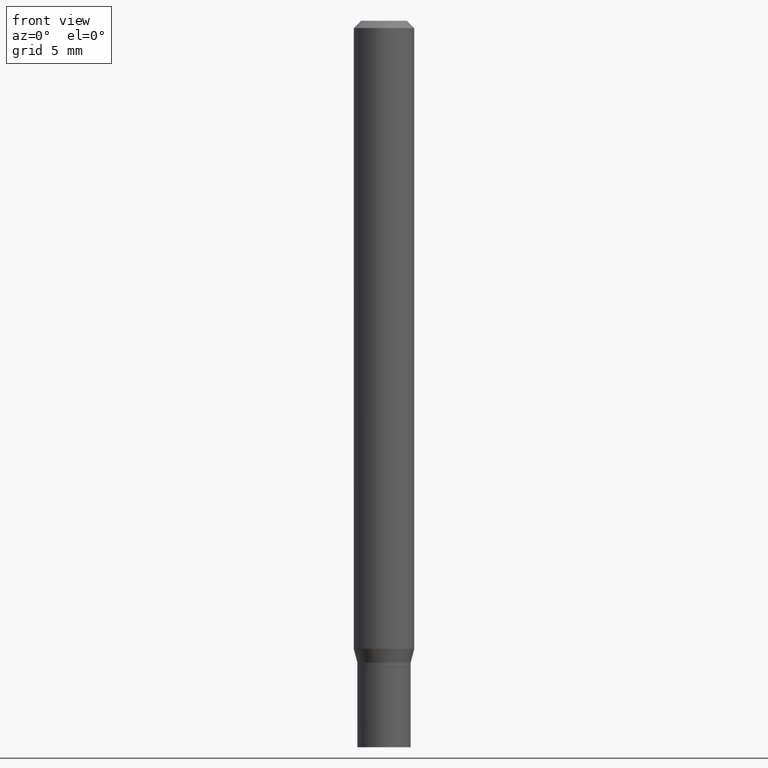
[diagram: clean part render]
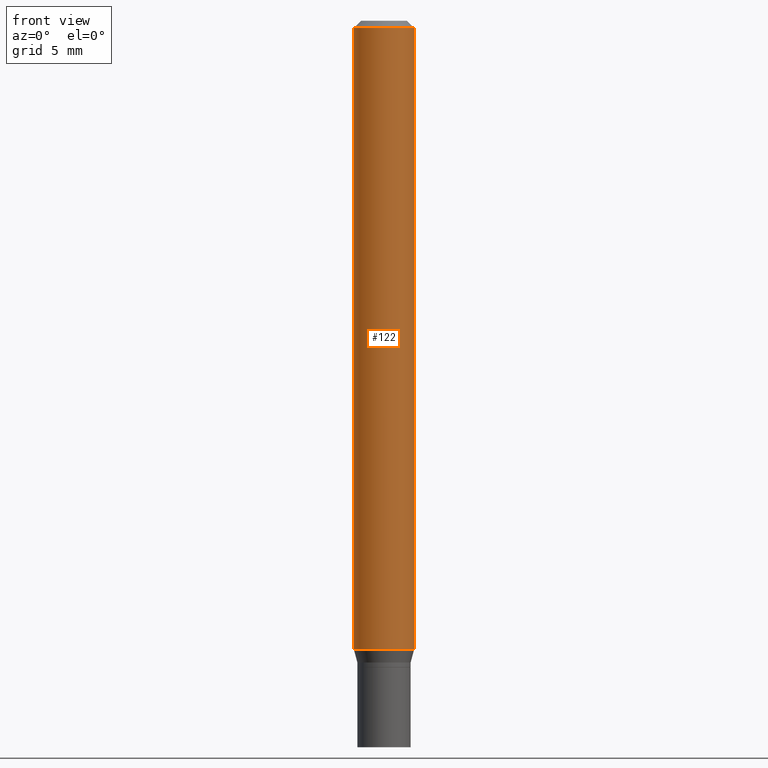
[diagram: same view with one face highlighted and labeled with its STEP entity id]
A machine part, front view. The second image highlights one B-rep face of the part: STEP entity #122.
In plain terms, the highlighted cylindrical surface (edge-blend (fillet) strip) has radius 1.5875 mm, axis along (-0, 0, 1).
Its self-contained STEP definition (entity closure, byte-faithful):
#1 = FACE_OUTER_BOUND ( 'NONE', #27, .T. ) ;
#7 = DIRECTION ( 'NONE',  ( 1.000000000000000000, -6.982962677686262766E-15, 0.000000000000000000 ) ) ;
#23 = CARTESIAN_POINT ( 'NONE',  ( 0.06250000000000000000, -4.364351673553916694E-16, 3.047610484872459871E-30 ) ) ;
#27 = EDGE_LOOP ( 'NONE', ( #345, #61, #312, #248 ) ) ;
#40 = DIRECTION ( 'NONE',  ( -2.445468806185136597E-29, 3.491481338843145583E-15, 1.000000000000000000 ) ) ;
#52 = CIRCLE ( 'NONE', #204, 0.06250000000000000000 ) ;
#57 = AXIS2_PLACEMENT_3D ( 'NONE', #296, #155, #159 ) ;
#59 = VERTEX_POINT ( 'NONE', #166 ) ;
#61 = ORIENTED_EDGE ( 'NONE', *, *, #113, .T. ) ;
#73 = VECTOR ( 'NONE', #241, 39.37007874015748143 ) ;
#86 = LINE ( 'NONE', #365, #309 ) ;
#92 = CARTESIAN_POINT ( 'NONE',  ( 0.06250000000000000000, -4.964920048195750682E-15, -1.297009618943233411 ) ) ;
#95 = LINE ( 'NONE', #23, #73 ) ;
#111 = AXIS2_PLACEMENT_3D ( 'NONE', #369, #333, #202 ) ;
#113 = EDGE_CURVE ( 'NONE', #59, #249, #52, .T. ) ;
#122 = ADVANCED_FACE ( 'NONE', ( #1 ), #322, .T. ) ;
#140 = VERTEX_POINT ( 'NONE', #219 ) ;
#155 = DIRECTION ( 'NONE',  ( -2.445468806185136597E-29, 3.491481338843145583E-15, 1.000000000000000000 ) ) ;
#159 = DIRECTION ( 'NONE',  ( 1.000000000000000000, -6.982962677686266711E-15, 4.876176775795935793E-29 ) ) ;
#166 = CARTESIAN_POINT ( 'NONE',  ( -0.06250000000000000000, -4.084395670990296396E-15, -1.297009618943233411 ) ) ;
#177 = CIRCLE ( 'NONE', #111, 0.06250000000000000000 ) ;
#181 = EDGE_CURVE ( 'NONE', #59, #191, #86, .T. ) ;
#191 = VERTEX_POINT ( 'NONE', #405 ) ;
#195 = EDGE_CURVE ( 'NONE', #191, #140, #177, .T. ) ;
#202 = DIRECTION ( 'NONE',  ( 1.000000000000000000, -6.982962677686266711E-15, 0.000000000000000000 ) ) ;
#204 = AXIS2_PLACEMENT_3D ( 'NONE', #392, #40, #7 ) ;
#219 = CARTESIAN_POINT ( 'NONE',  ( 0.06250000000000000000, -4.888073874380388472E-16, -0.01499999999999999944 ) ) ;
#241 = DIRECTION ( 'NONE',  ( -2.445468806185136877E-29, 3.491481338843145188E-15, 1.000000000000000000 ) ) ;
#248 = ORIENTED_EDGE ( 'NONE', *, *, #195, .F. ) ;
#249 = VERTEX_POINT ( 'NONE', #92 ) ;
#262 = EDGE_CURVE ( 'NONE', #249, #140, #95, .T. ) ;
#296 = CARTESIAN_POINT ( 'NONE',  ( 0.000000000000000000, 0.000000000000000000, 0.000000000000000000 ) ) ;
#309 = VECTOR ( 'NONE', #410, 39.37007874015748143 ) ;
#312 = ORIENTED_EDGE ( 'NONE', *, *, #262, .T. ) ;
#322 = CYLINDRICAL_SURFACE ( 'NONE', #57, 0.06250000000000000000 ) ;
#333 = DIRECTION ( 'NONE',  ( -2.445468806185136597E-29, 3.491481338843145583E-15, 1.000000000000000000 ) ) ;
#345 = ORIENTED_EDGE ( 'NONE', *, *, #181, .F. ) ;
#365 = CARTESIAN_POINT ( 'NONE',  ( -0.06250000000000000000, 4.440892098500626162E-16, -3.074334431409316114E-30 ) ) ;
#369 = CARTESIAN_POINT ( 'NONE',  ( 3.668203209277705088E-31, -5.237222008264718399E-17, -0.01499999999999999944 ) ) ;
#392 = CARTESIAN_POINT ( 'NONE',  ( 3.171796564447747781E-29, -4.528484880840358223E-15, -1.297009618943233411 ) ) ;
#405 = CARTESIAN_POINT ( 'NONE',  ( -0.06250000000000000000, -1.846339340611440232E-15, -0.01499999999999999944 ) ) ;
#410 = DIRECTION ( 'NONE',  ( -2.445468806185136877E-29, 3.491481338843145188E-15, 1.000000000000000000 ) ) ;